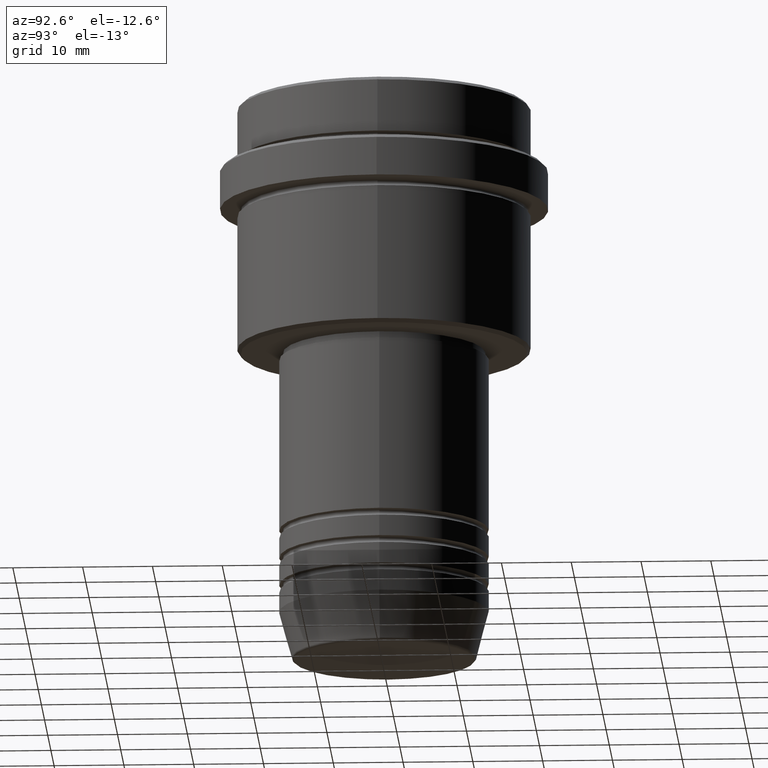
[diagram: clean part render]
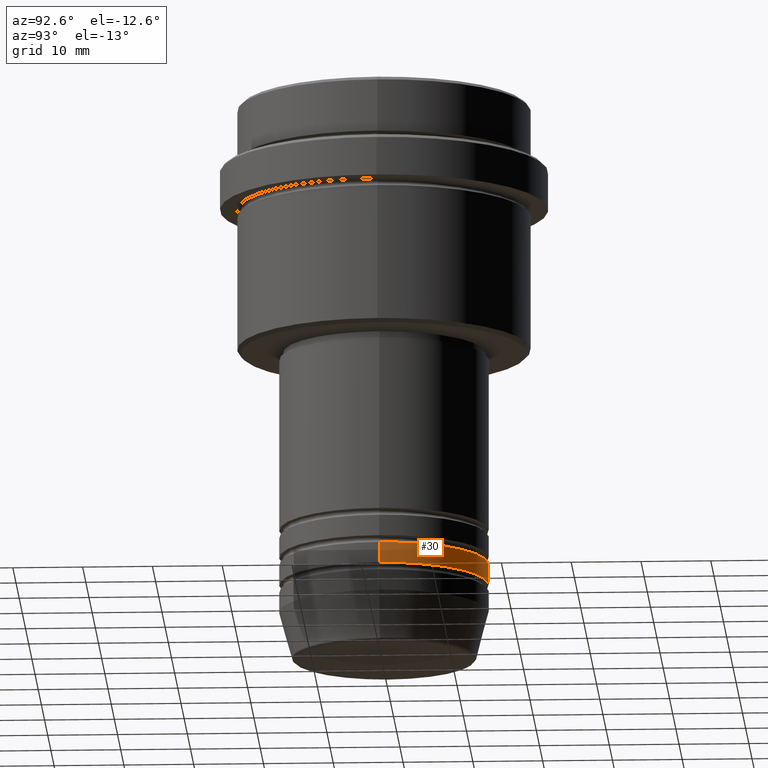
[diagram: same view with one face highlighted and labeled with its STEP entity id]
A machine part, auxiliary view. The second image highlights one B-rep face of the part: STEP entity #30.
In plain terms, the highlighted cylindrical surface (partial cylindrical patch) has radius 15 mm, axis along (-0, -0, 1).
Its self-contained STEP definition (entity closure, byte-faithful):
#30 = ADVANCED_FACE ( 'NONE', ( #255 ), #698, .T. ) ;
#33 = CARTESIAN_POINT ( 'NONE',  ( 0.000000000000000000, 0.000000000000000000, 0.000000000000000000 ) ) ;
#75 = LINE ( 'NONE', #763, #1307 ) ;
#109 = AXIS2_PLACEMENT_3D ( 'NONE', #748, #537, #1069 ) ;
#170 = ORIENTED_EDGE ( 'NONE', *, *, #995, .T. ) ;
#198 = CARTESIAN_POINT ( 'NONE',  ( 15.00000000000000000, 0.000000000000000000, 0.000000000000000000 ) ) ;
#230 = AXIS2_PLACEMENT_3D ( 'NONE', #33, #472, #918 ) ;
#255 = FACE_OUTER_BOUND ( 'NONE', #1165, .T. ) ;
#261 = VERTEX_POINT ( 'NONE', #440 ) ;
#267 = CARTESIAN_POINT ( 'NONE',  ( -15.00000000000000000, 1.836970198721029589E-15, -69.99999999999988631 ) ) ;
#419 = DIRECTION ( 'NONE',  ( -0.000000000000000000, -0.000000000000000000, 1.000000000000000000 ) ) ;
#440 = CARTESIAN_POINT ( 'NONE',  ( 15.00000000000000000, 0.000000000000000000, -66.99999999999988631 ) ) ;
#456 = EDGE_CURVE ( 'NONE', #928, #261, #1357, .T. ) ;
#472 = DIRECTION ( 'NONE',  ( -0.000000000000000000, -0.000000000000000000, 1.000000000000000000 ) ) ;
#529 = CARTESIAN_POINT ( 'NONE',  ( 0.000000000000000000, 0.000000000000000000, -66.99999999999988631 ) ) ;
#537 = DIRECTION ( 'NONE',  ( -0.000000000000000000, -0.000000000000000000, 1.000000000000000000 ) ) ;
#545 = DIRECTION ( 'NONE',  ( 1.000000000000000000, 0.000000000000000000, 0.000000000000000000 ) ) ;
#586 = AXIS2_PLACEMENT_3D ( 'NONE', #529, #419, #545 ) ;
#611 = CIRCLE ( 'NONE', #586, 15.00000000000000000 ) ;
#698 = CYLINDRICAL_SURFACE ( 'NONE', #230, 15.00000000000000000 ) ;
#748 = CARTESIAN_POINT ( 'NONE',  ( 0.000000000000000000, 0.000000000000000000, -69.99999999999988631 ) ) ;
#763 = CARTESIAN_POINT ( 'NONE',  ( -15.00000000000000000, 1.836970198721029589E-15, 0.000000000000000000 ) ) ;
#872 = CIRCLE ( 'NONE', #109, 15.00000000000000000 ) ;
#918 = DIRECTION ( 'NONE',  ( 1.000000000000000000, 0.000000000000000000, 0.000000000000000000 ) ) ;
#924 = ORIENTED_EDGE ( 'NONE', *, *, #456, .F. ) ;
#928 = VERTEX_POINT ( 'NONE', #975 ) ;
#948 = EDGE_CURVE ( 'NONE', #928, #1322, #872, .T. ) ;
#975 = CARTESIAN_POINT ( 'NONE',  ( 15.00000000000000000, 0.000000000000000000, -69.99999999999988631 ) ) ;
#995 = EDGE_CURVE ( 'NONE', #1322, #1249, #75, .T. ) ;
#1002 = EDGE_CURVE ( 'NONE', #261, #1249, #611, .T. ) ;
#1020 = CARTESIAN_POINT ( 'NONE',  ( -15.00000000000000000, 1.836970198721029589E-15, -66.99999999999988631 ) ) ;
#1031 = ORIENTED_EDGE ( 'NONE', *, *, #1002, .F. ) ;
#1069 = DIRECTION ( 'NONE',  ( 1.000000000000000000, 0.000000000000000000, 0.000000000000000000 ) ) ;
#1163 = DIRECTION ( 'NONE',  ( -0.000000000000000000, -0.000000000000000000, 1.000000000000000000 ) ) ;
#1164 = ORIENTED_EDGE ( 'NONE', *, *, #948, .T. ) ;
#1165 = EDGE_LOOP ( 'NONE', ( #1164, #170, #1031, #924 ) ) ;
#1249 = VERTEX_POINT ( 'NONE', #1020 ) ;
#1271 = DIRECTION ( 'NONE',  ( -0.000000000000000000, -0.000000000000000000, 1.000000000000000000 ) ) ;
#1288 = VECTOR ( 'NONE', #1271, 1000.000000000000000 ) ;
#1307 = VECTOR ( 'NONE', #1163, 1000.000000000000000 ) ;
#1322 = VERTEX_POINT ( 'NONE', #267 ) ;
#1357 = LINE ( 'NONE', #198, #1288 ) ;